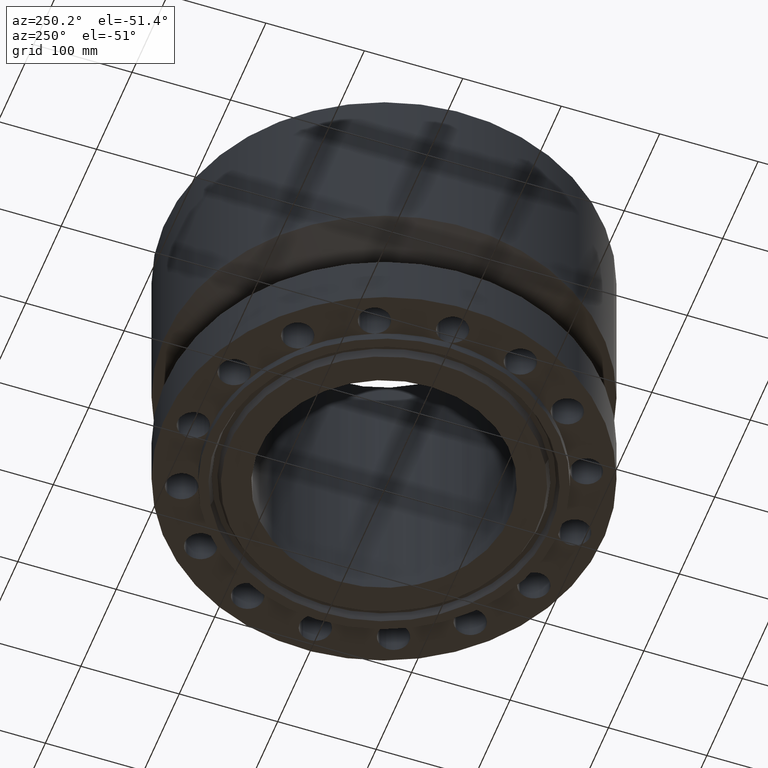
[diagram: clean part render]
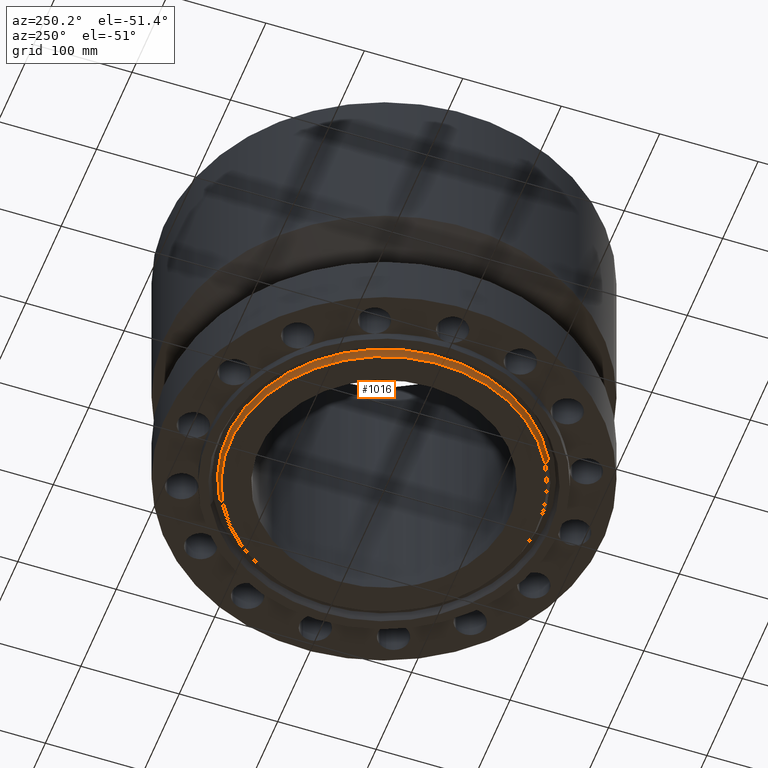
[diagram: same view with one face highlighted and labeled with its STEP entity id]
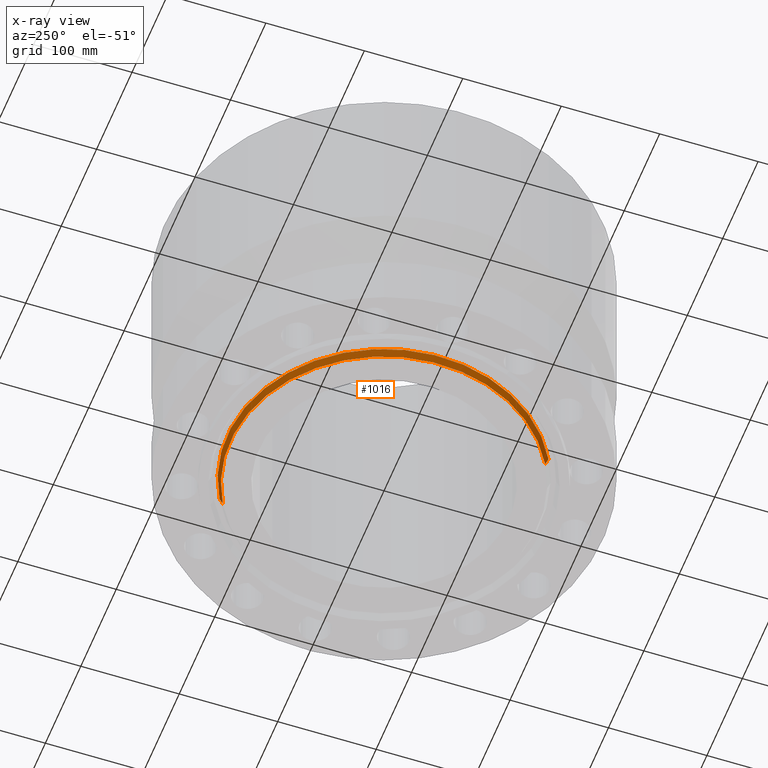
[diagram: x-ray of the same camera — body ghosted, the highlighted face saturated]
A machine part, auxiliary view. The second image highlights one B-rep face of the part: STEP entity #1016.
The next image is the same camera in x-ray: the body ghosted, the highlighted face saturated — about 0% of this face is hidden behind the body in this view.
In plain terms, the highlighted conical surface has half-angle 23 deg.
Its self-contained STEP definition (entity closure, byte-faithful):
#965=AXIS2_PLACEMENT_3D('Circle Axis2P3D',#963,#964,$) ;
#989=AXIS2_PLACEMENT_3D('Cone Axis2P3D',#986,#987,#988) ;
#1000=AXIS2_PLACEMENT_3D('Circle Axis2P3D',#998,#999,$) ;
#963=CARTESIAN_POINT('Axis2P3D Location',(0.,0.,-0.313000000001)) ;
#967=CARTESIAN_POINT('Vertex',(-2.94391251981,-5.38879572131,-0.313000000001)) ;
#969=CARTESIAN_POINT('Vertex',(2.94391251981,5.38879572131,-0.313000000001)) ;
#986=CARTESIAN_POINT('Axis2P3D Location',(0.,0.,-0.313000000001)) ;
#991=CARTESIAN_POINT('Line Origine',(-2.97383908161,-5.44357592523,-0.165943667509)) ;
#995=CARTESIAN_POINT('Vertex',(-3.0037656434,-5.49835612915,-0.0188873350169)) ;
#998=CARTESIAN_POINT('Axis2P3D Location',(0.,0.,-0.0188873350169)) ;
#1002=CARTESIAN_POINT('Vertex',(3.0037656434,5.49835612915,-0.0188873350169)) ;
#1005=CARTESIAN_POINT('Line Origine',(2.97383908161,5.44357592523,-0.165943667509)) ;
#964=DIRECTION('Axis2P3D Direction',(0.,0.,-0.0393700787402)) ;
#987=DIRECTION('Axis2P3D Direction',(-0.,-0.,0.0393700787402)) ;
#988=DIRECTION('Axis2P3D XDirection',(-0.0188750212049,-0.0345504945626,0.)) ;
#992=DIRECTION('Vector Direction',(-0.00737505833565,-0.0134999537303,0.0362403485611)) ;
#999=DIRECTION('Axis2P3D Direction',(-0.,0.,0.0393700787402)) ;
#1006=DIRECTION('Vector Direction',(0.00737505833565,0.0134999537303,0.0362403485611)) ;
#993=VECTOR('Line Direction',#992,0.0393700787402) ;
#1007=VECTOR('Line Direction',#1006,0.0393700787402) ;
#1011=ORIENTED_EDGE('',*,*,#971,.F.) ;
#1012=ORIENTED_EDGE('',*,*,#997,.T.) ;
#1013=ORIENTED_EDGE('',*,*,#1004,.T.) ;
#1014=ORIENTED_EDGE('',*,*,#1009,.F.) ;
#1016=ADVANCED_FACE('PartBody',(#1015),#990,.T.) ;
#966=CIRCLE('generated circle',#965,6.14050000002) ;
#1001=CIRCLE('generated circle',#1000,6.26534341944) ;
#990=CONICAL_SURFACE('Cone',#989,6.14050000002,0.401425727959) ;
#971=EDGE_CURVE('',#968,#970,#966,.T.) ;
#997=EDGE_CURVE('',#968,#996,#994,.T.) ;
#1004=EDGE_CURVE('',#996,#1003,#1001,.F.) ;
#1009=EDGE_CURVE('',#970,#1003,#1008,.T.) ;
#1010=EDGE_LOOP('',(#1011,#1012,#1013,#1014)) ;
#1015=FACE_OUTER_BOUND('',#1010,.T.) ;
#994=LINE('Line',#991,#993) ;
#1008=LINE('Line',#1005,#1007) ;
#968=VERTEX_POINT('',#967) ;
#970=VERTEX_POINT('',#969) ;
#996=VERTEX_POINT('',#995) ;
#1003=VERTEX_POINT('',#1002) ;